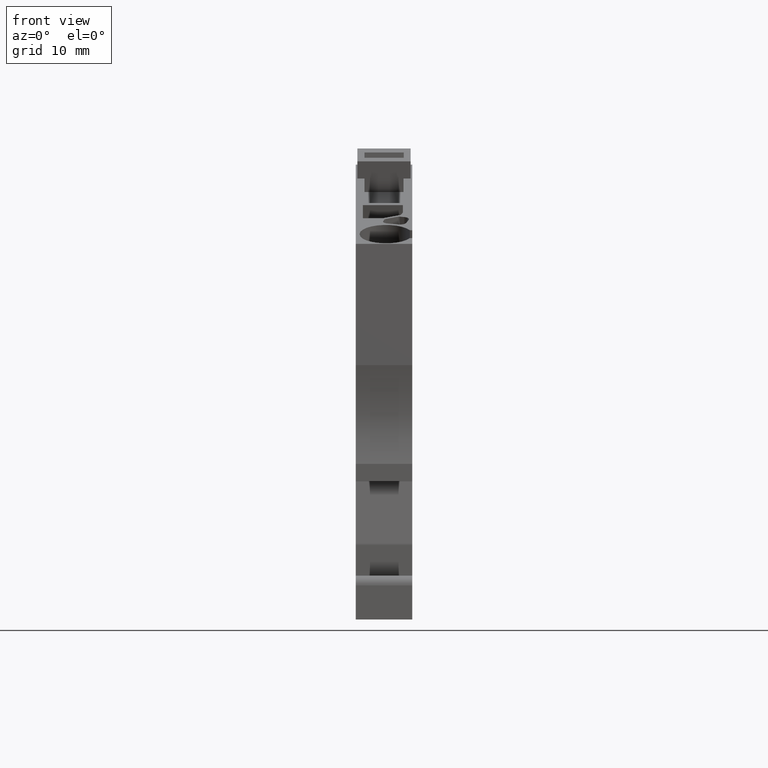
[diagram: clean part render]
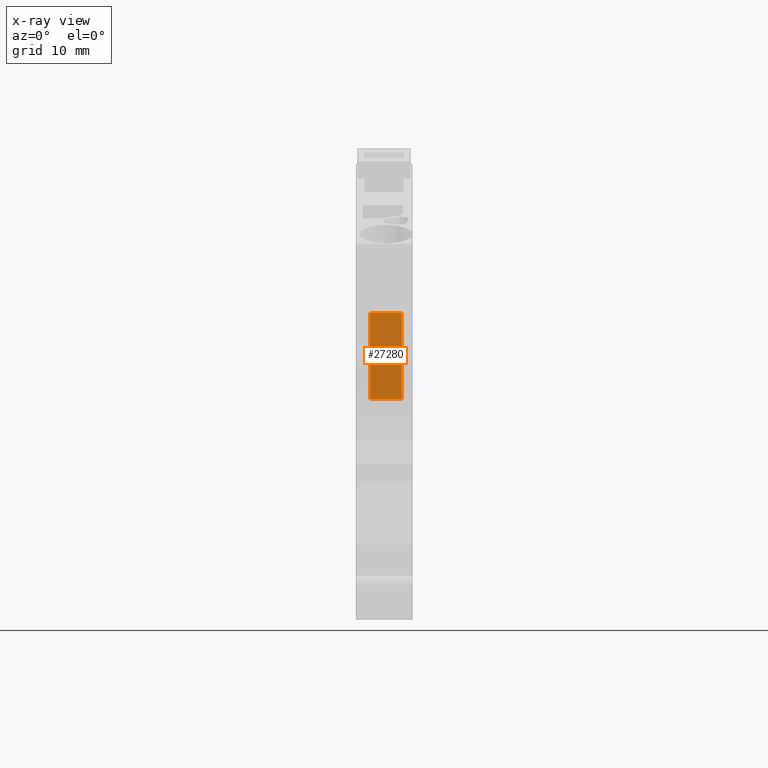
[diagram: x-ray — body ghosted, one internal face saturated and labeled with its STEP entity id]
A machine part, front view, then the same camera in x-ray: the body is ghosted and one INTERNAL B-rep face — a face not visible from any outside direction — is saturated and labeled: STEP entity #27280.
In plain terms, the highlighted planar face has unit normal (-0, -0.9397, 0.342).
Its self-contained STEP definition (entity closure, byte-faithful):
#23820=CARTESIAN_POINT('',(-1.59993800386173,14.1087421770678,
-3.84999999999906));
#23830=VERTEX_POINT('',#23820);
#23860=CARTESIAN_POINT('',(-6.73510019925304,-6.822918966331E-12,
-3.84999999999907));
#23870=DIRECTION('',(-0.34202014332567,-0.939692620785908,
-5.72823891784464E-16));
#23880=VECTOR('',#23870,1.);
#23890=LINE('',#23860,#23880);
#23900=CARTESIAN_POINT('',(1.25593019290378,21.9551755606197,
-3.84999999999906));
#23910=VERTEX_POINT('',#23900);
#23920=EDGE_CURVE('',#23910,#23830,#23890,.T.);
#26980=CARTESIAN_POINT('',(-2.77990749833909,10.8668026353459,
-5.28400239999909));
#26990=DIRECTION('',(-0.939692620785908,0.34202014332567,
-1.89859319008377E-17));
#27000=DIRECTION('',(0.34202014332567,0.939692620785908,
1.56490257550031E-16));
#27010=AXIS2_PLACEMENT_3D('',#26980,#26990,#27000);
#27020=PLANE('',#27010);
#27030=CARTESIAN_POINT('',(1.25593019290382,21.9551755606197,
-5.28400239999908));
#27040=DIRECTION('',(-7.13637604222934E-17,-1.40559169094754E-16,1.));
#27050=VECTOR('',#27040,1.);
#27060=LINE('',#27030,#27050);
#27070=CARTESIAN_POINT('',(1.25593019290379,21.9551755606197,
-0.949999999999048));
#27080=VERTEX_POINT('',#27070);
#27090=EDGE_CURVE('',#23910,#27080,#27060,.T.);
#27100=ORIENTED_EDGE('',*,*,#27090,.T.);
#27110=ORIENTED_EDGE('',*,*,#23920,.F.);
#27120=CARTESIAN_POINT('',(-1.59993800386172,14.1087421770678,
5.05519449241708E-14));
#27130=DIRECTION('',(-5.35228203168492E-17,-9.15415890132041E-17,1.));
#27140=VECTOR('',#27130,1.);
#27150=LINE('',#27120,#27140);
#27160=CARTESIAN_POINT('',(-1.59993800386172,14.1087421770678,
-0.949999999999053));
#27170=VERTEX_POINT('',#27160);
#27180=EDGE_CURVE('',#23830,#27170,#27150,.T.);
#27190=ORIENTED_EDGE('',*,*,#27180,.F.);
#27200=CARTESIAN_POINT('',(-6.73510019925304,-6.82332658792137E-12,
-0.949999999999061));
#27210=DIRECTION('',(0.34202014332567,0.939692620785908,
5.72823891784464E-16));
#27220=VECTOR('',#27210,1.);
#27230=LINE('',#27200,#27220);
#27240=EDGE_CURVE('',#27170,#27080,#27230,.T.);
#27250=ORIENTED_EDGE('',*,*,#27240,.F.);
#27260=EDGE_LOOP('',(#27250,#27190,#27110,#27100));
#27270=FACE_OUTER_BOUND('',#27260,.T.);
#27280=ADVANCED_FACE('',(#27270),#27020,.F.);